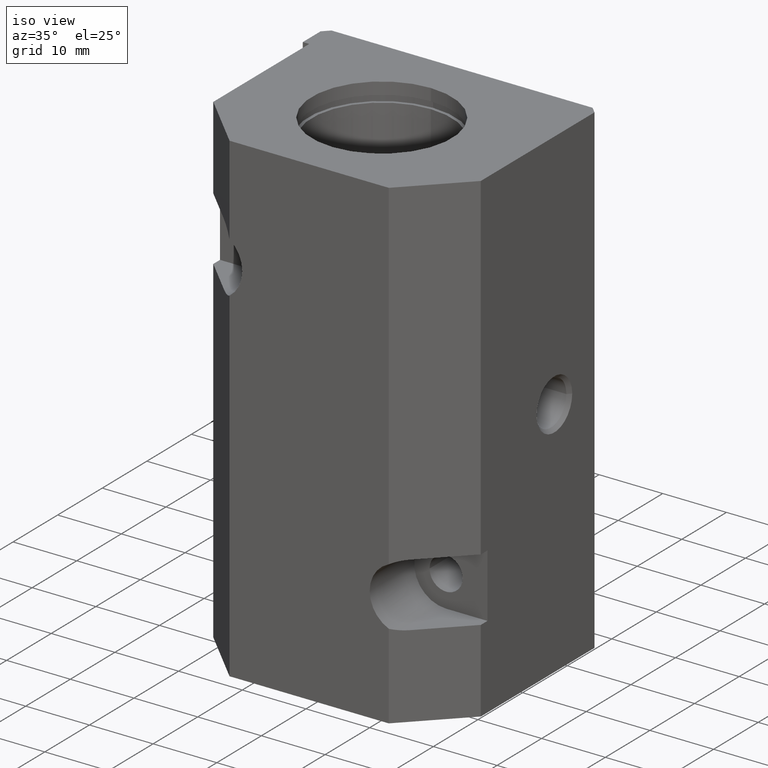
[diagram: clean part render]
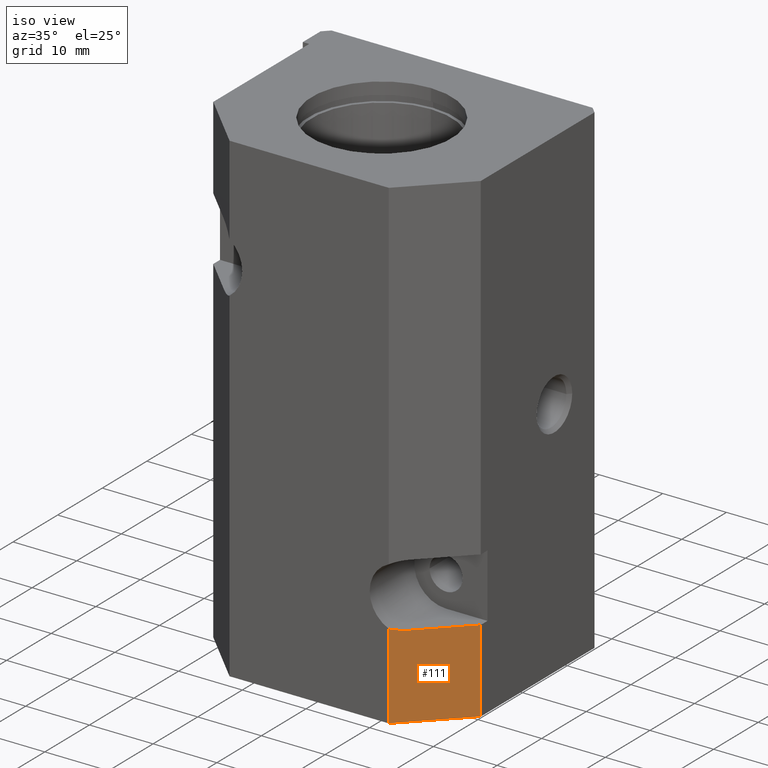
[diagram: same view with one face highlighted and labeled with its STEP entity id]
A machine part, iso view. The second image highlights one B-rep face of the part: STEP entity #111.
In plain terms, the highlighted planar face has unit normal (0.7071, -0.7071, 0).
Its self-contained STEP definition (entity closure, byte-faithful):
#111 = ADVANCED_FACE( '', ( #216 ), #217, .T. );
#216 = FACE_OUTER_BOUND( '', #359, .T. );
#217 = PLANE( '', #360 );
#359 = EDGE_LOOP( '', ( #685, #686, #687, #688, #689 ) );
#360 = AXIS2_PLACEMENT_3D( '', #690, #691, #692 );
#685 = ORIENTED_EDGE( '', *, *, #996, .T. );
#686 = ORIENTED_EDGE( '', *, *, #1016, .F. );
#687 = ORIENTED_EDGE( '', *, *, #1017, .T. );
#688 = ORIENTED_EDGE( '', *, *, #1018, .T. );
#689 = ORIENTED_EDGE( '', *, *, #1008, .T. );
#690 = CARTESIAN_POINT( '', ( 21.5000000000000, 8.50000000000000, 0.000000000000000 ) );
#691 = DIRECTION( '', ( 0.707106781186548, -0.707106781186548, 0.000000000000000 ) );
#692 = DIRECTION( '', ( 0.707106781186548, 0.707106781186548, 0.000000000000000 ) );
#996 = EDGE_CURVE( '', #1210, #1208, #1211, .T. );
#1008 = EDGE_CURVE( '', #1231, #1210, #1232, .T. );
#1016 = EDGE_CURVE( '', #1244, #1208, #1245, .T. );
#1017 = EDGE_CURVE( '', #1244, #1246, #1247, .T. );
#1018 = EDGE_CURVE( '', #1246, #1231, #1248, .T. );
#1208 = VERTEX_POINT( '', #1534 );
#1210 = VERTEX_POINT( '', #1536 );
#1211 = ELLIPSE( '', #1537, 7.07106781186548, 5.00000000000000 );
#1231 = VERTEX_POINT( '', #1566 );
#1232 = LINE( '', #1567, #1568 );
#1244 = VERTEX_POINT( '', #1584 );
#1245 = LINE( '', #1585, #1586 );
#1246 = VERTEX_POINT( '', #1587 );
#1247 = LINE( '', #1588, #1589 );
#1248 = LINE( '', #1590, #1591 );
#1534 = CARTESIAN_POINT( '', ( 13.0000000000000, 0.000000000000000, 13.4174243050442 ) );
#1536 = CARTESIAN_POINT( '', ( 15.0000000000000, 2.00000000000000, 13.0000000000000 ) );
#1537 = AXIS2_PLACEMENT_3D( '', #1854, #1855, #1856 );
#1566 = CARTESIAN_POINT( '', ( 21.5000000000000, 8.50000000000000, 13.0000000000000 ) );
#1567 = CARTESIAN_POINT( '', ( 17.7500000000000, 4.75000000000000, 13.0000000000000 ) );
#1568 = VECTOR( '', #1872, 1.00000000000000 );
#1584 = CARTESIAN_POINT( '', ( 13.0000000000000, 0.000000000000000, 0.000000000000000 ) );
#1585 = CARTESIAN_POINT( '', ( 13.0000000000000, 0.000000000000000, 0.000000000000000 ) );
#1586 = VECTOR( '', #1886, 1.00000000000000 );
#1587 = CARTESIAN_POINT( '', ( 21.5000000000000, 8.50000000000000, 0.000000000000000 ) );
#1588 = CARTESIAN_POINT( '', ( 13.0000000000000, 0.000000000000000, 0.000000000000000 ) );
#1589 = VECTOR( '', #1887, 1.00000000000000 );
#1590 = CARTESIAN_POINT( '', ( 21.5000000000000, 8.50000000000000, 0.000000000000000 ) );
#1591 = VECTOR( '', #1888, 1.00000000000000 );
#1854 = CARTESIAN_POINT( '', ( 15.0000000000000, 2.00000000000000, 18.0000000000000 ) );
#1855 = DIRECTION( '', ( -0.707106781186548, 0.707106781186548, 0.000000000000000 ) );
#1856 = DIRECTION( '', ( -0.707106781186547, -0.707106781186547, 0.000000000000000 ) );
#1872 = DIRECTION( '', ( -0.707106781186548, -0.707106781186548, -0.000000000000000 ) );
#1886 = DIRECTION( '', ( 0.000000000000000, 0.000000000000000, 1.00000000000000 ) );
#1887 = DIRECTION( '', ( 0.707106781186548, 0.707106781186548, 0.000000000000000 ) );
#1888 = DIRECTION( '', ( 0.000000000000000, 0.000000000000000, 1.00000000000000 ) );